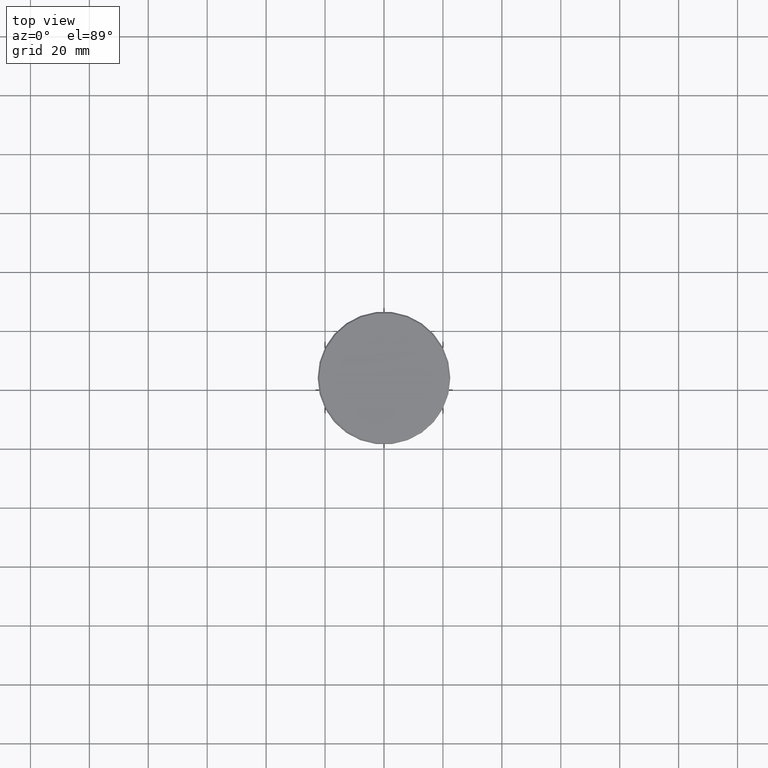
[diagram: clean part render]
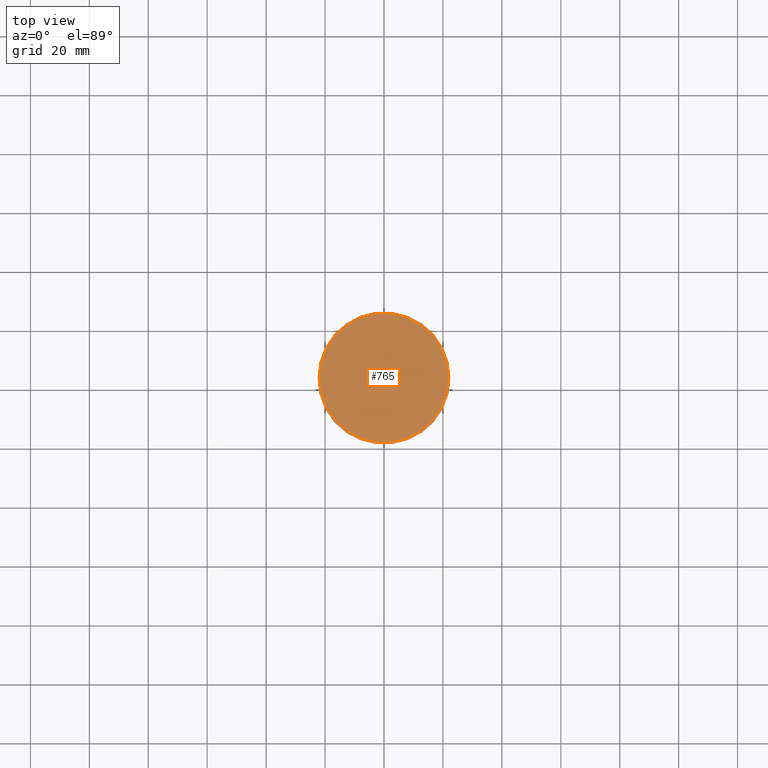
[diagram: same view with one face highlighted and labeled with its STEP entity id]
A machine part, top view. The second image highlights one B-rep face of the part: STEP entity #765.
In plain terms, the highlighted planar face has unit normal (0, -0, 1).
Its self-contained STEP definition (entity closure, byte-faithful):
#59 = PLANE ( 'NONE',  #813 ) ;
#93 = CARTESIAN_POINT ( 'NONE',  ( 0.000000000000000000, 0.000000000000000000, 0.000000000000000000 ) ) ;
#101 = CIRCLE ( 'NONE', #409, 21.99999999999996447 ) ;
#230 = DIRECTION ( 'NONE',  ( 1.000000000000000000, 0.000000000000000000, 0.000000000000000000 ) ) ;
#281 = DIRECTION ( 'NONE',  ( 1.000000000000000000, 0.000000000000000000, 0.000000000000000000 ) ) ;
#409 = AXIS2_PLACEMENT_3D ( 'NONE', #790, #587, #697 ) ;
#462 = VERTEX_POINT ( 'NONE', #729 ) ;
#470 = AXIS2_PLACEMENT_3D ( 'NONE', #93, #624, #281 ) ;
#520 = EDGE_CURVE ( 'NONE', #1101, #462, #829, .T. ) ;
#587 = DIRECTION ( 'NONE',  ( -0.000000000000000000, -0.000000000000000000, 1.000000000000000000 ) ) ;
#606 = ORIENTED_EDGE ( 'NONE', *, *, #520, .T. ) ;
#624 = DIRECTION ( 'NONE',  ( -0.000000000000000000, -0.000000000000000000, 1.000000000000000000 ) ) ;
#632 = ORIENTED_EDGE ( 'NONE', *, *, #826, .T. ) ;
#697 = DIRECTION ( 'NONE',  ( 1.000000000000000000, 0.000000000000000000, 0.000000000000000000 ) ) ;
#729 = CARTESIAN_POINT ( 'NONE',  ( 21.99999999999996447, 2.724839128102858624E-15, 0.000000000000000000 ) ) ;
#765 = ADVANCED_FACE ( 'NONE', ( #948 ), #59, .T. ) ;
#790 = CARTESIAN_POINT ( 'NONE',  ( 0.000000000000000000, 0.000000000000000000, 0.000000000000000000 ) ) ;
#813 = AXIS2_PLACEMENT_3D ( 'NONE', #863, #939, #230 ) ;
#826 = EDGE_CURVE ( 'NONE', #462, #1101, #101, .T. ) ;
#829 = CIRCLE ( 'NONE', #470, 21.99999999999996447 ) ;
#863 = CARTESIAN_POINT ( 'NONE',  ( 0.000000000000000000, 0.000000000000000000, 0.000000000000000000 ) ) ;
#910 = CARTESIAN_POINT ( 'NONE',  ( -21.99999999999996447, 0.000000000000000000, 0.000000000000000000 ) ) ;
#939 = DIRECTION ( 'NONE',  ( 0.000000000000000000, -0.000000000000000000, 1.000000000000000000 ) ) ;
#948 = FACE_OUTER_BOUND ( 'NONE', #1001, .T. ) ;
#1001 = EDGE_LOOP ( 'NONE', ( #606, #632 ) ) ;
#1101 = VERTEX_POINT ( 'NONE', #910 ) ;